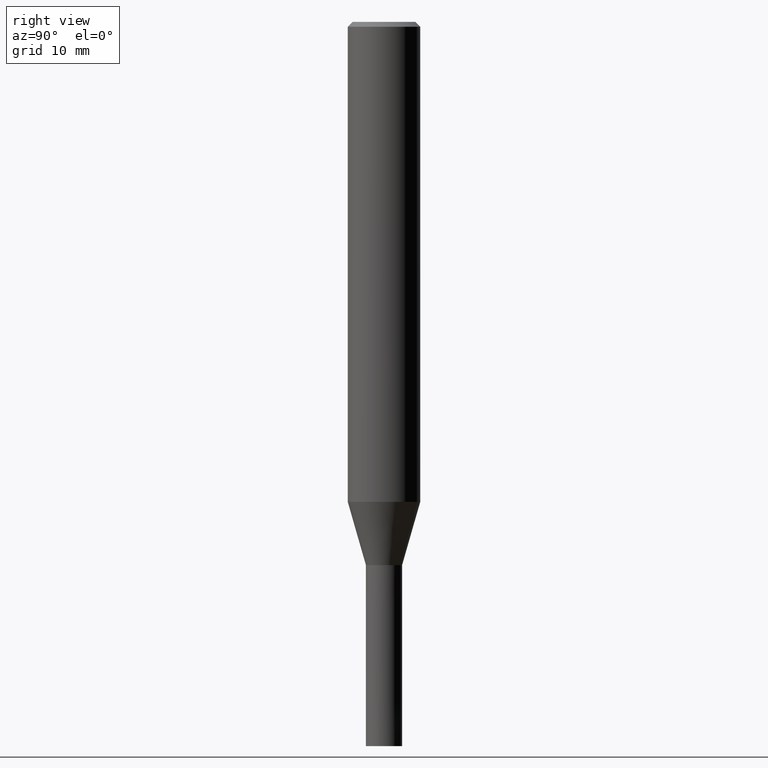
[diagram: clean part render]
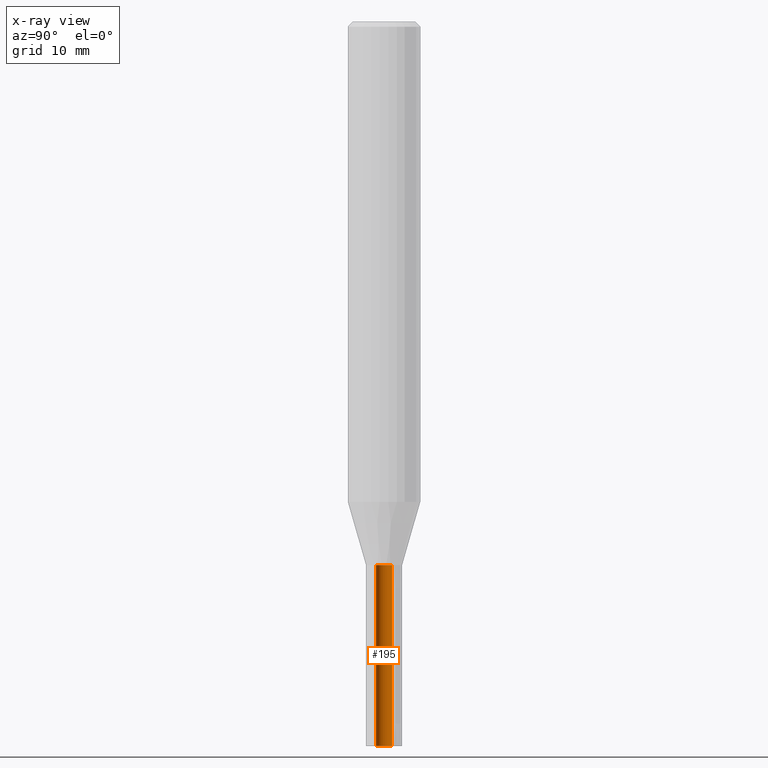
[diagram: x-ray — body ghosted, one internal face saturated and labeled with its STEP entity id]
A machine part, right view, then the same camera in x-ray: the body is ghosted and one INTERNAL B-rep face — a face not visible from any outside direction — is saturated and labeled: STEP entity #195.
In plain terms, the highlighted cylindrical surface (edge-blend (fillet) strip) has radius 0.675 mm, axis along (-0, -0, 1).
Its self-contained STEP definition (entity closure, byte-faithful):
#111=VERTEX_POINT('',#282);
#147=EDGE_CURVE('',#161,#183,#322,.T.);
#161=VERTEX_POINT('',#338);
#183=VERTEX_POINT('',#361);
#195=ADVANCED_FACE('',(#375),#376,.F.);
#213=EDGE_CURVE('',#219,#111,#397,.T.);
#219=VERTEX_POINT('',#403);
#239=EDGE_CURVE('',#111,#161,#426,.T.);
#257=EDGE_CURVE('',#219,#183,#450,.T.);
#282=CARTESIAN_POINT('',(8.26609288830105E-017,-0.675,-45.0));
#322=LINE('',#519,#520);
#338=CARTESIAN_POINT('',(0.0,0.675,-45.0));
#361=CARTESIAN_POINT('',(0.0,0.675,-60.0));
#375=FACE_OUTER_BOUND('',#589,.T.);
#376=CYLINDRICAL_SURFACE('',#590,0.675);
#397=LINE('',#615,#616);
#403=CARTESIAN_POINT('',(8.26609288830105E-017,-0.675,-60.0));
#426=CIRCLE('',#652,0.675);
#450=CIRCLE('',#678,0.675);
#519=CARTESIAN_POINT('',(-8.26609288830105E-017,0.675,-52.5));
#520=VECTOR('',#733,1.0);
#589=EDGE_LOOP('',(#795,#796,#797,#798));
#590=AXIS2_PLACEMENT_3D('',#799,#800,#801);
#615=CARTESIAN_POINT('',(8.26609288830105E-017,-0.675,-52.5));
#616=VECTOR('',#832,1.0);
#652=AXIS2_PLACEMENT_3D('',#862,#863,#864);
#678=AXIS2_PLACEMENT_3D('',#897,#898,#899);
#733=DIRECTION('',(0.0,-0.0,-1.0));
#795=ORIENTED_EDGE('',*,*,#147,.F.);
#796=ORIENTED_EDGE('',*,*,#239,.F.);
#797=ORIENTED_EDGE('',*,*,#213,.F.);
#798=ORIENTED_EDGE('',*,*,#257,.T.);
#799=CARTESIAN_POINT('',(0.0,0.0,-52.5));
#800=DIRECTION('',(-0.0,-0.0,1.0));
#801=DIRECTION('',(0.0,1.0,0.0));
#832=DIRECTION('',(0.0,-0.0,1.0));
#862=CARTESIAN_POINT('',(0.0,0.0,-45.0));
#863=DIRECTION('',(0.0,0.0,-1.0));
#864=DIRECTION('',(0.0,1.0,0.0));
#897=CARTESIAN_POINT('',(0.0,0.0,-60.0));
#898=DIRECTION('',(0.0,0.0,-1.0));
#899=DIRECTION('',(0.0,1.0,0.0));